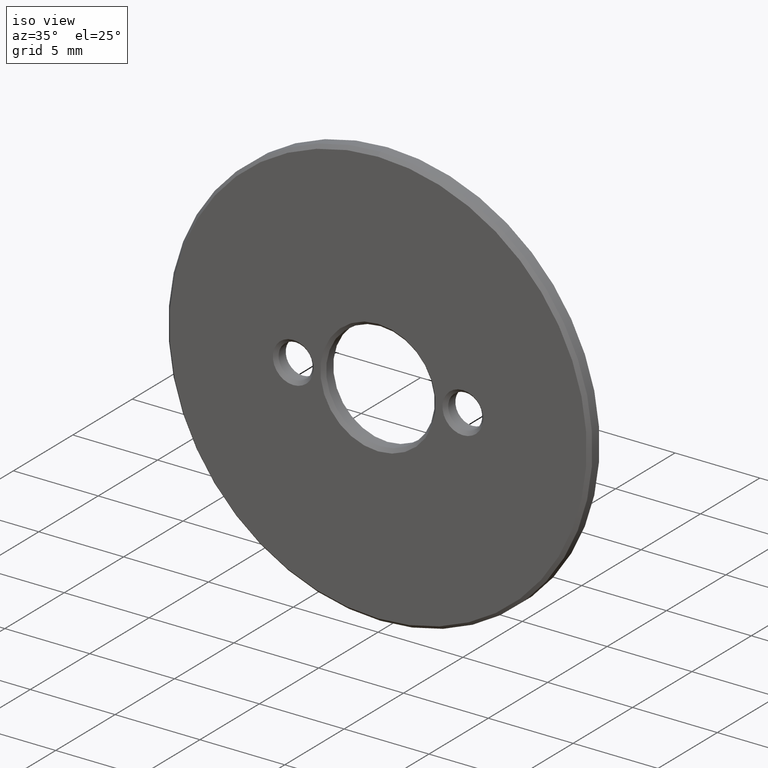
[diagram: clean part render]
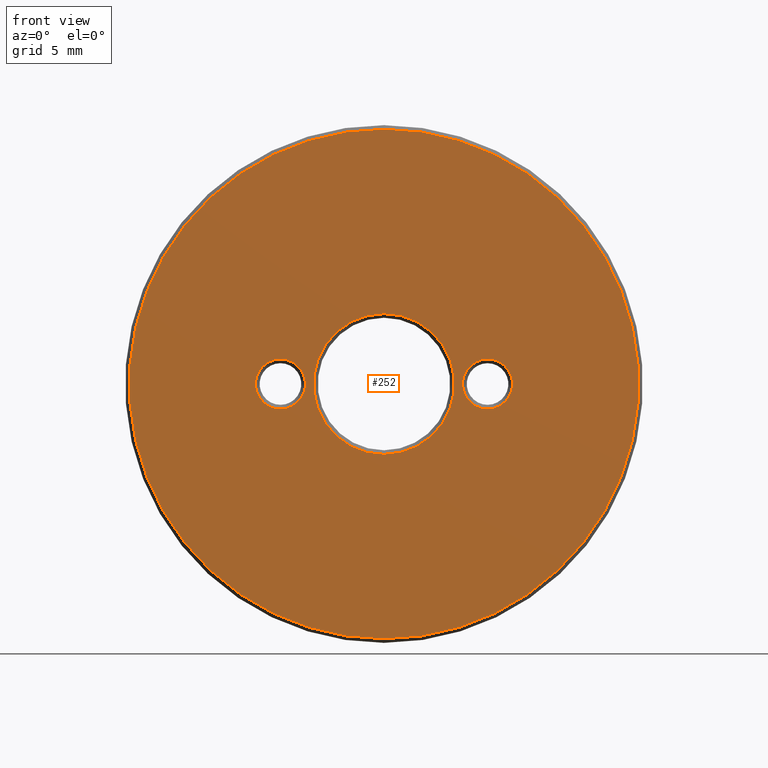
[diagram: tour spotlight — one face highlighted and labeled with its STEP entity id]
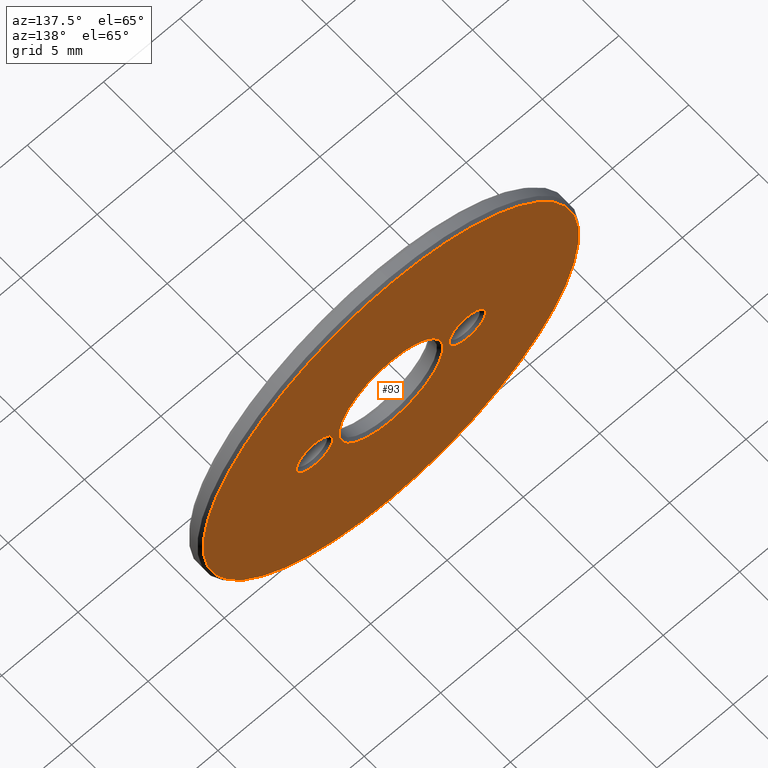
[diagram: tour spotlight — one face highlighted and labeled with its STEP entity id]
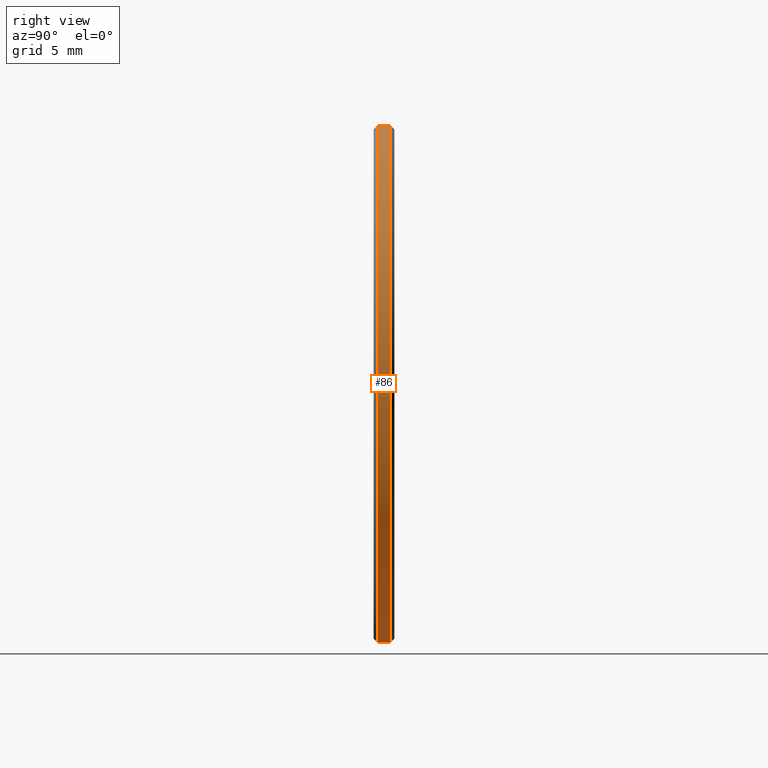
[diagram: tour spotlight — one face highlighted and labeled with its STEP entity id]
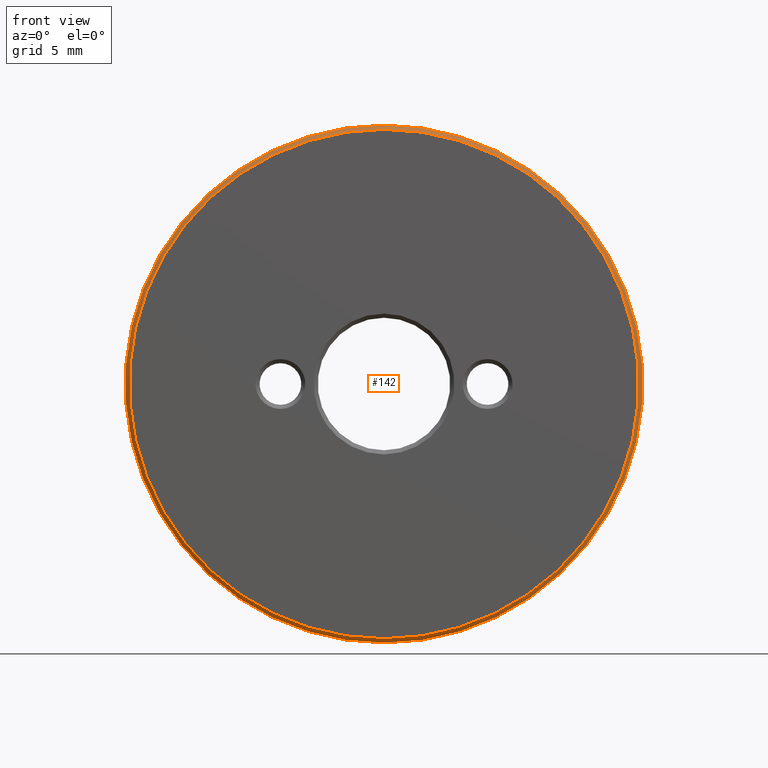
[diagram: tour spotlight — one face highlighted and labeled with its STEP entity id]
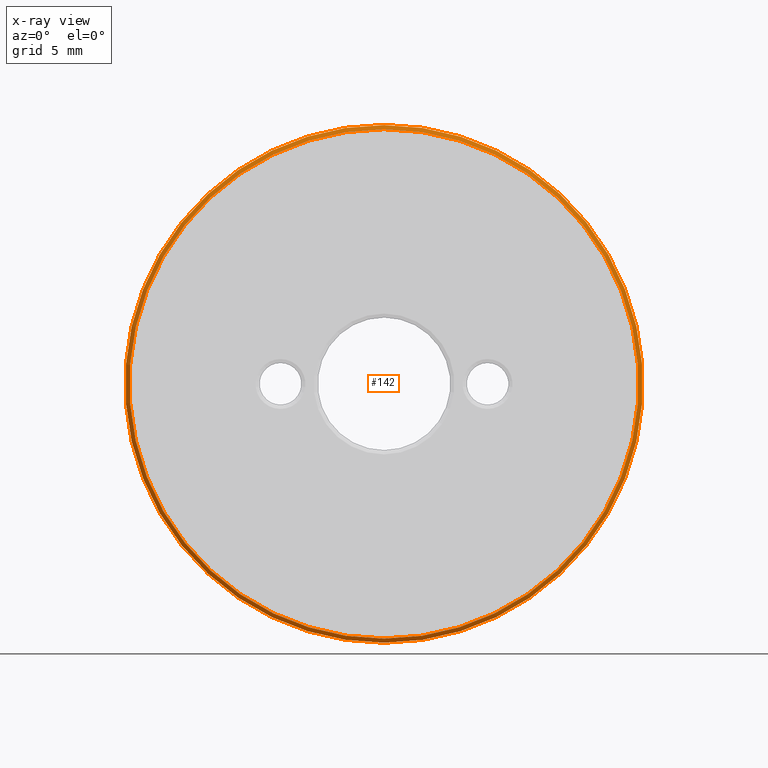
[diagram: x-ray of the same camera — body ghosted, this tour face saturated]
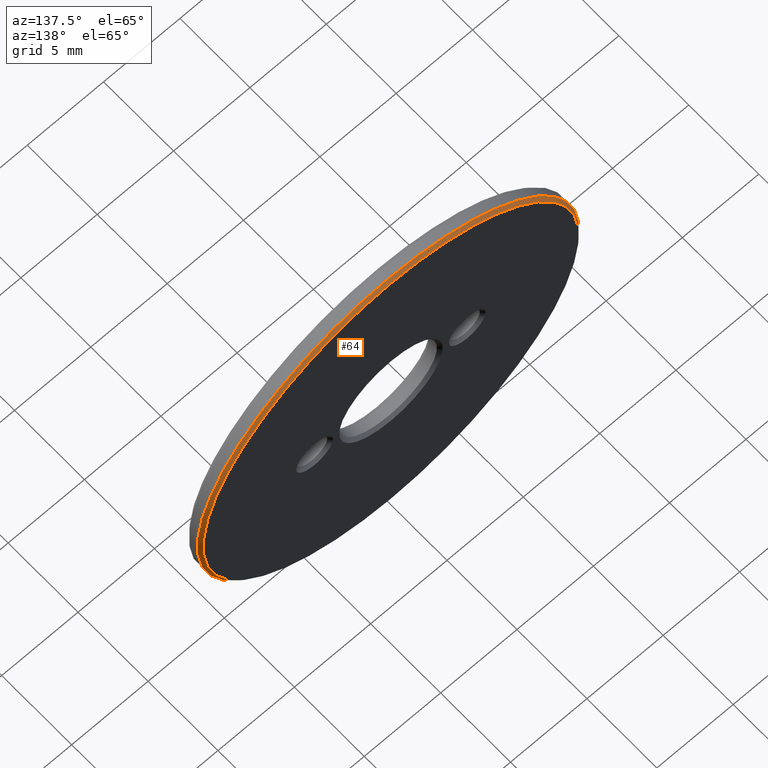
[diagram: tour spotlight — one face highlighted and labeled with its STEP entity id]
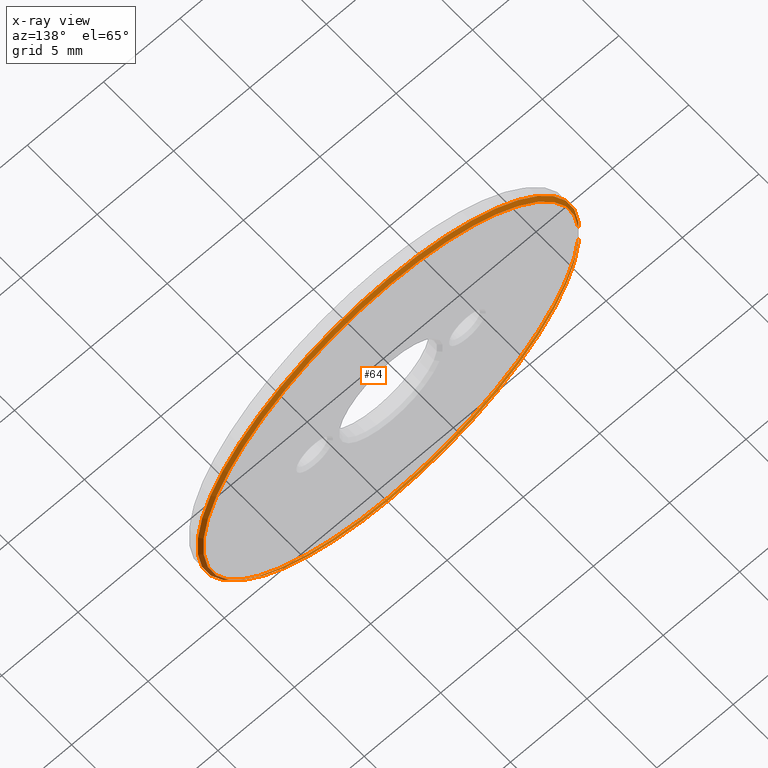
[diagram: x-ray of the same camera — body ghosted, this tour face saturated]
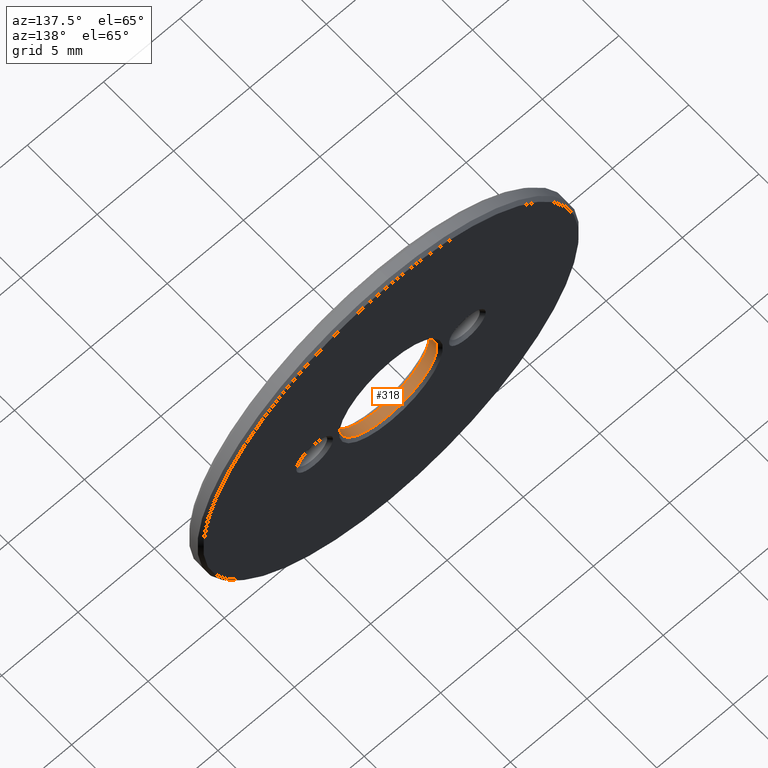
[diagram: tour spotlight — one face highlighted and labeled with its STEP entity id]
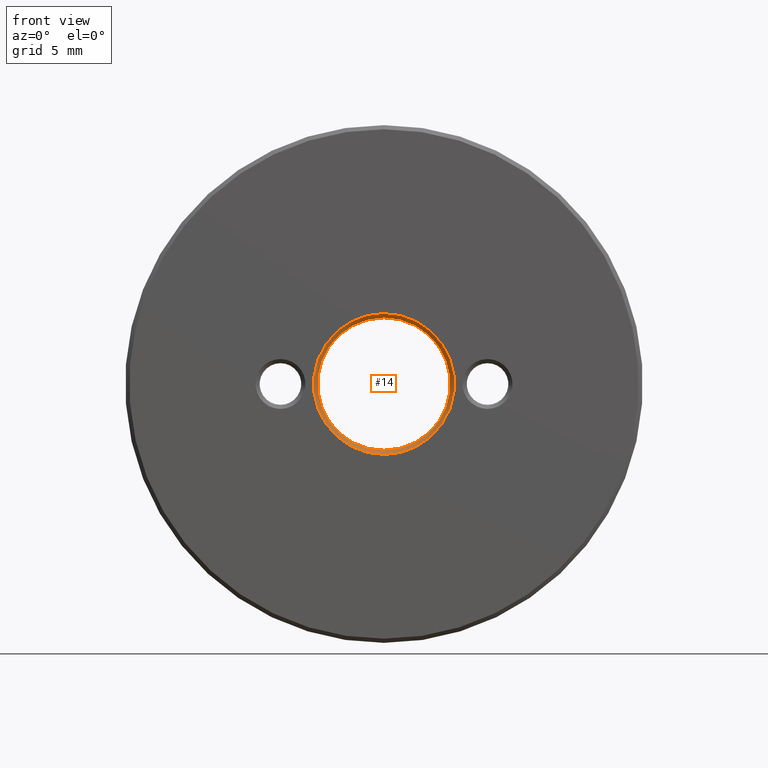
[diagram: tour spotlight — one face highlighted and labeled with its STEP entity id]
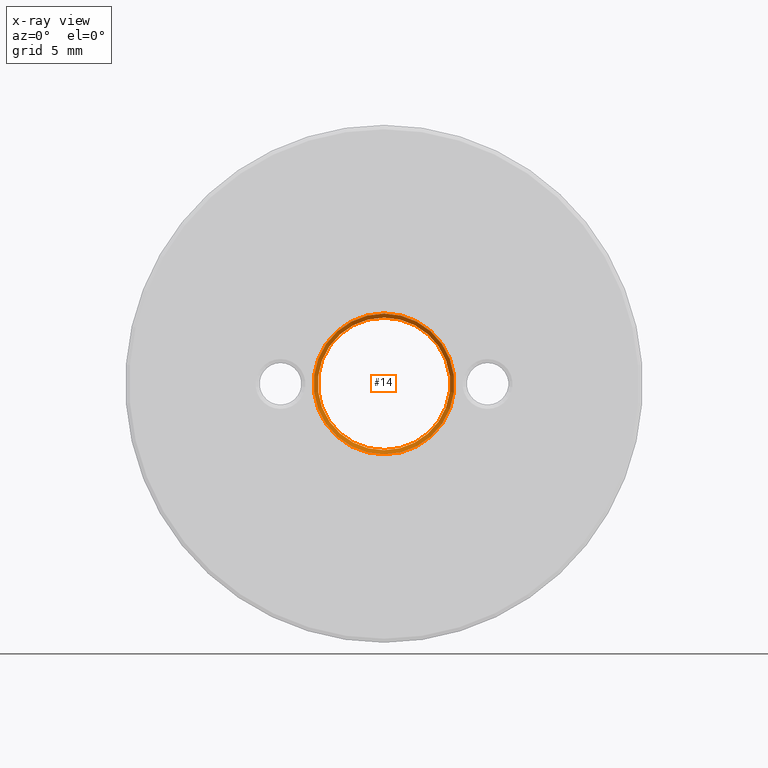
[diagram: x-ray of the same camera — body ghosted, this tour face saturated]
A machine part: a face-by-face anatomy tour. The part has 14 B-rep faces; the first image is the clean iso view, then the 7 largest visible faces are spotlighted one at a time (largest first), each with its STEP entity span.

Face 1 — front view, entity #252. In plain terms, the highlighted planar face has unit normal (0, 1, 0).
Definition (entity closure, byte-faithful):
#25 = VERTEX_POINT ( 'NONE', #118 ) ;
#33 = VERTEX_POINT ( 'NONE', #220 ) ;
#55 = FACE_BOUND ( 'NONE', #148, .T. ) ;
#66 = AXIS2_PLACEMENT_3D ( 'NONE', #170, #211, #260 ) ;
#84 = DIRECTION ( 'NONE',  ( 0.000000000000000000, 1.000000000000000000, 0.000000000000000000 ) ) ;
#87 = EDGE_LOOP ( 'NONE', ( #306 ) ) ;
#106 = CARTESIAN_POINT ( 'NONE',  ( -5.000000000000000000, 0.000000000000000000, 0.000000000000000000 ) ) ;
#108 = CIRCLE ( 'NONE', #341, 12.30000000000000249 ) ;
#109 = PLANE ( 'NONE',  #66 ) ;
#110 = FACE_OUTER_BOUND ( 'NONE', #87, .T. ) ;
#118 = CARTESIAN_POINT ( 'NONE',  ( 0.000000000000000000, 0.000000000000000000, 12.30000000000000249 ) ) ;
#125 = DIRECTION ( 'NONE',  ( 0.000000000000000000, 0.000000000000000000, 1.000000000000000000 ) ) ;
#127 = VERTEX_POINT ( 'NONE', #337 ) ;
#132 = EDGE_CURVE ( 'NONE', #183, #183, #276, .T. ) ;
#144 = EDGE_LOOP ( 'NONE', ( #363 ) ) ;
#148 = EDGE_LOOP ( 'NONE', ( #178 ) ) ;
#154 = CIRCLE ( 'NONE', #235, 1.205000000000001181 ) ;
#157 = CARTESIAN_POINT ( 'NONE',  ( 5.000000000000000000, 0.000000000000000000, -1.836970198721029194E-15 ) ) ;
#161 = DIRECTION ( 'NONE',  ( 0.000000000000000000, 1.000000000000000000, 0.000000000000000000 ) ) ;
#163 = EDGE_CURVE ( 'NONE', #33, #33, #154, .T. ) ;
#168 = EDGE_CURVE ( 'NONE', #127, #127, #289, .T. ) ;
#170 = CARTESIAN_POINT ( 'NONE',  ( 0.000000000000000000, 0.000000000000000000, 0.000000000000000000 ) ) ;
#178 = ORIENTED_EDGE ( 'NONE', *, *, #168, .T. ) ;
#183 = VERTEX_POINT ( 'NONE', #343 ) ;
#203 = CARTESIAN_POINT ( 'NONE',  ( 0.000000000000000000, 0.000000000000000000, 0.000000000000000000 ) ) ;
#206 = AXIS2_PLACEMENT_3D ( 'NONE', #106, #396, #315 ) ;
#211 = DIRECTION ( 'NONE',  ( 0.000000000000000000, 1.000000000000000000, 0.000000000000000000 ) ) ;
#215 = EDGE_LOOP ( 'NONE', ( #308 ) ) ;
#220 = CARTESIAN_POINT ( 'NONE',  ( 5.000000000000000000, 0.000000000000000000, 1.204999999999999405 ) ) ;
#234 = FACE_BOUND ( 'NONE', #144, .T. ) ;
#235 = AXIS2_PLACEMENT_3D ( 'NONE', #157, #161, #125 ) ;
#236 = FACE_BOUND ( 'NONE', #215, .T. ) ;
#248 = CARTESIAN_POINT ( 'NONE',  ( 0.000000000000000000, 0.000000000000000000, 0.000000000000000000 ) ) ;
#252 = ADVANCED_FACE ( 'NONE', ( #234, #236, #55, #110 ), #109, .F. ) ;
#260 = DIRECTION ( 'NONE',  ( 0.000000000000000000, -0.000000000000000000, 1.000000000000000000 ) ) ;
#276 = CIRCLE ( 'NONE', #206, 1.205000000000001181 ) ;
#289 = CIRCLE ( 'NONE', #342, 3.400000000000007017 ) ;
#306 = ORIENTED_EDGE ( 'NONE', *, *, #394, .T. ) ;
#308 = ORIENTED_EDGE ( 'NONE', *, *, #163, .T. ) ;
#315 = DIRECTION ( 'NONE',  ( 0.000000000000000000, 0.000000000000000000, 1.000000000000000000 ) ) ;
#337 = CARTESIAN_POINT ( 'NONE',  ( 0.000000000000000000, 0.000000000000000000, 3.400000000000007017 ) ) ;
#341 = AXIS2_PLACEMENT_3D ( 'NONE', #203, #383, #359 ) ;
#342 = AXIS2_PLACEMENT_3D ( 'NONE', #248, #84, #355 ) ;
#343 = CARTESIAN_POINT ( 'NONE',  ( -5.000000000000000000, 0.000000000000000000, 1.205000000000001181 ) ) ;
#355 = DIRECTION ( 'NONE',  ( 0.000000000000000000, 0.000000000000000000, 1.000000000000000000 ) ) ;
#359 = DIRECTION ( 'NONE',  ( 0.000000000000000000, 0.000000000000000000, 1.000000000000000000 ) ) ;
#363 = ORIENTED_EDGE ( 'NONE', *, *, #132, .T. ) ;
#383 = DIRECTION ( 'NONE',  ( -0.000000000000000000, -1.000000000000000000, -0.000000000000000000 ) ) ;
#394 = EDGE_CURVE ( 'NONE', #25, #25, #108, .T. ) ;
#396 = DIRECTION ( 'NONE',  ( 0.000000000000000000, 1.000000000000000000, 0.000000000000000000 ) ) ;

Face 2 — auxiliary view, entity #93. In plain terms, the highlighted planar face has unit normal (0, 1, 0).
Definition (entity closure, byte-faithful):
#8 = DIRECTION ( 'NONE',  ( 0.000000000000000000, -0.000000000000000000, 1.000000000000000000 ) ) ;
#13 = CARTESIAN_POINT ( 'NONE',  ( -5.000000000000000000, 1.000000000000000000, 0.000000000000000000 ) ) ;
#15 = VERTEX_POINT ( 'NONE', #382 ) ;
#21 = ORIENTED_EDGE ( 'NONE', *, *, #81, .T. ) ;
#31 = EDGE_LOOP ( 'NONE', ( #119 ) ) ;
#48 = FACE_OUTER_BOUND ( 'NONE', #62, .T. ) ;
#50 = DIRECTION ( 'NONE',  ( 0.000000000000000000, 0.000000000000000000, 1.000000000000000000 ) ) ;
#62 = EDGE_LOOP ( 'NONE', ( #92 ) ) ;
#69 = CARTESIAN_POINT ( 'NONE',  ( -5.000000000000000000, 1.000000000000000000, 1.205000000000004734 ) ) ;
#70 = DIRECTION ( 'NONE',  ( 0.000000000000000000, 1.000000000000000000, 0.000000000000000000 ) ) ;
#79 = FACE_BOUND ( 'NONE', #362, .T. ) ;
#81 = EDGE_CURVE ( 'NONE', #15, #15, #302, .T. ) ;
#92 = ORIENTED_EDGE ( 'NONE', *, *, #204, .T. ) ;
#93 = ADVANCED_FACE ( 'NONE', ( #79, #345, #48, #102 ), #229, .T. ) ;
#97 = VERTEX_POINT ( 'NONE', #307 ) ;
#98 = CIRCLE ( 'NONE', #227, 12.29999999999999893 ) ;
#100 = VERTEX_POINT ( 'NONE', #241 ) ;
#102 = FACE_BOUND ( 'NONE', #181, .T. ) ;
#107 = CARTESIAN_POINT ( 'NONE',  ( 0.000000000000000000, 1.000000000000000000, 0.000000000000000000 ) ) ;
#115 = ORIENTED_EDGE ( 'NONE', *, *, #381, .T. ) ;
#119 = ORIENTED_EDGE ( 'NONE', *, *, #255, .T. ) ;
#138 = CARTESIAN_POINT ( 'NONE',  ( 5.000000000000000000, 1.000000000000000000, -1.836970198721029194E-15 ) ) ;
#145 = DIRECTION ( 'NONE',  ( -0.000000000000000000, -1.000000000000000000, -0.000000000000000000 ) ) ;
#147 = DIRECTION ( 'NONE',  ( -0.000000000000000000, -1.000000000000000000, -0.000000000000000000 ) ) ;
#160 = AXIS2_PLACEMENT_3D ( 'NONE', #294, #145, #263 ) ;
#174 = CARTESIAN_POINT ( 'NONE',  ( 0.000000000000000000, 1.000000000000000000, 0.000000000000000000 ) ) ;
#181 = EDGE_LOOP ( 'NONE', ( #21 ) ) ;
#204 = EDGE_CURVE ( 'NONE', #97, #97, #98, .T. ) ;
#221 = AXIS2_PLACEMENT_3D ( 'NONE', #13, #147, #232 ) ;
#227 = AXIS2_PLACEMENT_3D ( 'NONE', #174, #300, #50 ) ;
#229 = PLANE ( 'NONE',  #284 ) ;
#230 = DIRECTION ( 'NONE',  ( 0.000000000000000000, 0.000000000000000000, 1.000000000000000000 ) ) ;
#231 = AXIS2_PLACEMENT_3D ( 'NONE', #138, #257, #230 ) ;
#232 = DIRECTION ( 'NONE',  ( 0.000000000000000000, 0.000000000000000000, 1.000000000000000000 ) ) ;
#241 = CARTESIAN_POINT ( 'NONE',  ( 0.000000000000000000, 1.000000000000000000, 3.399999999999999911 ) ) ;
#255 = EDGE_CURVE ( 'NONE', #100, #100, #384, .T. ) ;
#257 = DIRECTION ( 'NONE',  ( -0.000000000000000000, -1.000000000000000000, -0.000000000000000000 ) ) ;
#263 = DIRECTION ( 'NONE',  ( 0.000000000000000000, 0.000000000000000000, 1.000000000000000000 ) ) ;
#278 = VERTEX_POINT ( 'NONE', #69 ) ;
#284 = AXIS2_PLACEMENT_3D ( 'NONE', #107, #70, #8 ) ;
#294 = CARTESIAN_POINT ( 'NONE',  ( 0.000000000000000000, 1.000000000000000000, 0.000000000000000000 ) ) ;
#300 = DIRECTION ( 'NONE',  ( 0.000000000000000000, 1.000000000000000000, 0.000000000000000000 ) ) ;
#302 = CIRCLE ( 'NONE', #231, 1.204999999999994298 ) ;
#307 = CARTESIAN_POINT ( 'NONE',  ( 0.000000000000000000, 1.000000000000000000, 12.29999999999999893 ) ) ;
#345 = FACE_BOUND ( 'NONE', #31, .T. ) ;
#362 = EDGE_LOOP ( 'NONE', ( #115 ) ) ;
#381 = EDGE_CURVE ( 'NONE', #278, #278, #385, .T. ) ;
#382 = CARTESIAN_POINT ( 'NONE',  ( 5.000000000000000000, 1.000000000000000000, 1.204999999999992522 ) ) ;
#384 = CIRCLE ( 'NONE', #160, 3.399999999999999911 ) ;
#385 = CIRCLE ( 'NONE', #221, 1.205000000000004734 ) ;

Face 3 — right view, entity #86. In plain terms, the highlighted cylindrical surface (bore or boss wall) has radius 12.5 mm, axis along (-0, -1, -0).
Definition (entity closure, byte-faithful):
#28 = CARTESIAN_POINT ( 'NONE',  ( 0.000000000000000000, 0.8000000000000029310, 12.50000000000000000 ) ) ;
#30 = AXIS2_PLACEMENT_3D ( 'NONE', #261, #205, #176 ) ;
#36 = CYLINDRICAL_SURFACE ( 'NONE', #379, 12.50000000000000000 ) ;
#72 = DIRECTION ( 'NONE',  ( 0.000000000000000000, 0.000000000000000000, -1.000000000000000000 ) ) ;
#82 = DIRECTION ( 'NONE',  ( 0.000000000000000000, 0.000000000000000000, 1.000000000000000000 ) ) ;
#86 = ADVANCED_FACE ( 'NONE', ( #279, #224 ), #36, .T. ) ;
#123 = VERTEX_POINT ( 'NONE', #28 ) ;
#137 = CARTESIAN_POINT ( 'NONE',  ( 0.000000000000000000, 1.000000000000000000, 0.000000000000000000 ) ) ;
#143 = CARTESIAN_POINT ( 'NONE',  ( 0.000000000000000000, 0.8000000000000029310, 0.000000000000000000 ) ) ;
#176 = DIRECTION ( 'NONE',  ( 0.000000000000000000, 0.000000000000000000, 1.000000000000000000 ) ) ;
#197 = CIRCLE ( 'NONE', #350, 12.50000000000000000 ) ;
#205 = DIRECTION ( 'NONE',  ( -0.000000000000000000, 1.000000000000000000, -0.000000000000000000 ) ) ;
#224 = FACE_OUTER_BOUND ( 'NONE', #304, .T. ) ;
#261 = CARTESIAN_POINT ( 'NONE',  ( 0.000000000000000000, 0.1999999999999987899, 0.000000000000000000 ) ) ;
#275 = CIRCLE ( 'NONE', #30, 12.50000000000000000 ) ;
#279 = FACE_OUTER_BOUND ( 'NONE', #388, .T. ) ;
#304 = EDGE_LOOP ( 'NONE', ( #390 ) ) ;
#333 = ORIENTED_EDGE ( 'NONE', *, *, #364, .T. ) ;
#334 = VERTEX_POINT ( 'NONE', #391 ) ;
#348 = EDGE_CURVE ( 'NONE', #123, #123, #197, .T. ) ;
#350 = AXIS2_PLACEMENT_3D ( 'NONE', #143, #387, #82 ) ;
#352 = DIRECTION ( 'NONE',  ( -0.000000000000000000, -1.000000000000000000, -0.000000000000000000 ) ) ;
#364 = EDGE_CURVE ( 'NONE', #334, #334, #275, .T. ) ;
#379 = AXIS2_PLACEMENT_3D ( 'NONE', #137, #352, #72 ) ;
#387 = DIRECTION ( 'NONE',  ( 0.000000000000000000, -1.000000000000000000, 0.000000000000000000 ) ) ;
#388 = EDGE_LOOP ( 'NONE', ( #333 ) ) ;
#390 = ORIENTED_EDGE ( 'NONE', *, *, #348, .T. ) ;
#391 = CARTESIAN_POINT ( 'NONE',  ( 0.000000000000000000, 0.1999999999999987899, 12.50000000000000000 ) ) ;

Face 4 — front view, entity #142. An x-ray twin of the same camera follows (body ghosted, this face saturated) — the face is partly hidden behind the body. In plain terms, the highlighted conical surface has half-angle 45 deg.
Definition (entity closure, byte-faithful):
#25 = VERTEX_POINT ( 'NONE', #118 ) ;
#30 = AXIS2_PLACEMENT_3D ( 'NONE', #261, #205, #176 ) ;
#32 = AXIS2_PLACEMENT_3D ( 'NONE', #38, #199, #311 ) ;
#38 = CARTESIAN_POINT ( 'NONE',  ( 0.000000000000000000, 0.1999999999999987899, 0.000000000000000000 ) ) ;
#68 = CONICAL_SURFACE ( 'NONE', #32, 12.50000000000000000, 0.7853981633974482790 ) ;
#108 = CIRCLE ( 'NONE', #341, 12.30000000000000249 ) ;
#118 = CARTESIAN_POINT ( 'NONE',  ( 0.000000000000000000, 0.000000000000000000, 12.30000000000000249 ) ) ;
#130 = FACE_OUTER_BOUND ( 'NONE', #331, .T. ) ;
#142 = ADVANCED_FACE ( 'NONE', ( #282, #130 ), #68, .T. ) ;
#176 = DIRECTION ( 'NONE',  ( 0.000000000000000000, 0.000000000000000000, 1.000000000000000000 ) ) ;
#199 = DIRECTION ( 'NONE',  ( -0.000000000000000000, 1.000000000000000000, -0.000000000000000000 ) ) ;
#203 = CARTESIAN_POINT ( 'NONE',  ( 0.000000000000000000, 0.000000000000000000, 0.000000000000000000 ) ) ;
#205 = DIRECTION ( 'NONE',  ( -0.000000000000000000, 1.000000000000000000, -0.000000000000000000 ) ) ;
#261 = CARTESIAN_POINT ( 'NONE',  ( 0.000000000000000000, 0.1999999999999987899, 0.000000000000000000 ) ) ;
#275 = CIRCLE ( 'NONE', #30, 12.50000000000000000 ) ;
#282 = FACE_BOUND ( 'NONE', #338, .T. ) ;
#311 = DIRECTION ( 'NONE',  ( 0.000000000000000000, 0.000000000000000000, 1.000000000000000000 ) ) ;
#331 = EDGE_LOOP ( 'NONE', ( #365 ) ) ;
#334 = VERTEX_POINT ( 'NONE', #391 ) ;
#338 = EDGE_LOOP ( 'NONE', ( #360 ) ) ;
#341 = AXIS2_PLACEMENT_3D ( 'NONE', #203, #383, #359 ) ;
#359 = DIRECTION ( 'NONE',  ( 0.000000000000000000, 0.000000000000000000, 1.000000000000000000 ) ) ;
#360 = ORIENTED_EDGE ( 'NONE', *, *, #394, .F. ) ;
#364 = EDGE_CURVE ( 'NONE', #334, #334, #275, .T. ) ;
#365 = ORIENTED_EDGE ( 'NONE', *, *, #364, .F. ) ;
#383 = DIRECTION ( 'NONE',  ( -0.000000000000000000, -1.000000000000000000, -0.000000000000000000 ) ) ;
#391 = CARTESIAN_POINT ( 'NONE',  ( 0.000000000000000000, 0.1999999999999987899, 12.50000000000000000 ) ) ;
#394 = EDGE_CURVE ( 'NONE', #25, #25, #108, .T. ) ;

Face 5 — auxiliary view, entity #64. An x-ray twin of the same camera follows (body ghosted, this face saturated) — the face is partly hidden behind the body. In plain terms, the highlighted conical surface has half-angle 45 deg.
Definition (entity closure, byte-faithful):
#19 = EDGE_LOOP ( 'NONE', ( #155 ) ) ;
#28 = CARTESIAN_POINT ( 'NONE',  ( 0.000000000000000000, 0.8000000000000029310, 12.50000000000000000 ) ) ;
#49 = CARTESIAN_POINT ( 'NONE',  ( 0.000000000000000000, 1.000000000000000000, 0.000000000000000000 ) ) ;
#50 = DIRECTION ( 'NONE',  ( 0.000000000000000000, 0.000000000000000000, 1.000000000000000000 ) ) ;
#64 = ADVANCED_FACE ( 'NONE', ( #397, #202 ), #369, .T. ) ;
#78 = AXIS2_PLACEMENT_3D ( 'NONE', #49, #222, #258 ) ;
#82 = DIRECTION ( 'NONE',  ( 0.000000000000000000, 0.000000000000000000, 1.000000000000000000 ) ) ;
#97 = VERTEX_POINT ( 'NONE', #307 ) ;
#98 = CIRCLE ( 'NONE', #227, 12.29999999999999893 ) ;
#123 = VERTEX_POINT ( 'NONE', #28 ) ;
#143 = CARTESIAN_POINT ( 'NONE',  ( 0.000000000000000000, 0.8000000000000029310, 0.000000000000000000 ) ) ;
#151 = EDGE_LOOP ( 'NONE', ( #320 ) ) ;
#155 = ORIENTED_EDGE ( 'NONE', *, *, #348, .F. ) ;
#174 = CARTESIAN_POINT ( 'NONE',  ( 0.000000000000000000, 1.000000000000000000, 0.000000000000000000 ) ) ;
#197 = CIRCLE ( 'NONE', #350, 12.50000000000000000 ) ;
#202 = FACE_BOUND ( 'NONE', #151, .T. ) ;
#204 = EDGE_CURVE ( 'NONE', #97, #97, #98, .T. ) ;
#222 = DIRECTION ( 'NONE',  ( 0.000000000000000000, -1.000000000000000000, 0.000000000000000000 ) ) ;
#227 = AXIS2_PLACEMENT_3D ( 'NONE', #174, #300, #50 ) ;
#258 = DIRECTION ( 'NONE',  ( 0.000000000000000000, 0.000000000000000000, -1.000000000000000000 ) ) ;
#300 = DIRECTION ( 'NONE',  ( 0.000000000000000000, 1.000000000000000000, 0.000000000000000000 ) ) ;
#307 = CARTESIAN_POINT ( 'NONE',  ( 0.000000000000000000, 1.000000000000000000, 12.29999999999999893 ) ) ;
#320 = ORIENTED_EDGE ( 'NONE', *, *, #204, .F. ) ;
#348 = EDGE_CURVE ( 'NONE', #123, #123, #197, .T. ) ;
#350 = AXIS2_PLACEMENT_3D ( 'NONE', #143, #387, #82 ) ;
#369 = CONICAL_SURFACE ( 'NONE', #78, 12.29999999999999893, 0.7853981633974612686 ) ;
#387 = DIRECTION ( 'NONE',  ( 0.000000000000000000, -1.000000000000000000, 0.000000000000000000 ) ) ;
#397 = FACE_OUTER_BOUND ( 'NONE', #19, .T. ) ;

Face 6 — auxiliary view, entity #318. In plain terms, the highlighted cylindrical surface (bore or boss wall) has radius 3.2 mm, axis along (-0, -1, -0).
Definition (entity closure, byte-faithful):
#3 = EDGE_CURVE ( 'NONE', #172, #172, #47, .T. ) ;
#23 = DIRECTION ( 'NONE',  ( -0.000000000000000000, -1.000000000000000000, -0.000000000000000000 ) ) ;
#47 = CIRCLE ( 'NONE', #171, 3.200000000000000178 ) ;
#59 = CARTESIAN_POINT ( 'NONE',  ( 0.000000000000000000, 0.2000000000000070333, 3.200000000000000178 ) ) ;
#80 = CYLINDRICAL_SURFACE ( 'NONE', #309, 3.200000000000000178 ) ;
#85 = CARTESIAN_POINT ( 'NONE',  ( 0.000000000000000000, 1.000000000000000000, 0.000000000000000000 ) ) ;
#94 = EDGE_LOOP ( 'NONE', ( #329 ) ) ;
#171 = AXIS2_PLACEMENT_3D ( 'NONE', #184, #246, #366 ) ;
#172 = VERTEX_POINT ( 'NONE', #59 ) ;
#184 = CARTESIAN_POINT ( 'NONE',  ( 0.000000000000000000, 0.2000000000000070333, 0.000000000000000000 ) ) ;
#188 = CIRCLE ( 'NONE', #200, 3.200000000000000178 ) ;
#189 = VERTEX_POINT ( 'NONE', #269 ) ;
#200 = AXIS2_PLACEMENT_3D ( 'NONE', #325, #380, #207 ) ;
#207 = DIRECTION ( 'NONE',  ( 0.000000000000000000, 0.000000000000000000, 1.000000000000000000 ) ) ;
#245 = EDGE_CURVE ( 'NONE', #189, #189, #188, .T. ) ;
#246 = DIRECTION ( 'NONE',  ( -0.000000000000000000, -1.000000000000000000, -0.000000000000000000 ) ) ;
#269 = CARTESIAN_POINT ( 'NONE',  ( 0.000000000000000000, 0.8000000000000003775, 3.200000000000000178 ) ) ;
#309 = AXIS2_PLACEMENT_3D ( 'NONE', #85, #23, #332 ) ;
#318 = ADVANCED_FACE ( 'NONE', ( #361, #327 ), #80, .F. ) ;
#325 = CARTESIAN_POINT ( 'NONE',  ( 0.000000000000000000, 0.8000000000000003775, 0.000000000000000000 ) ) ;
#327 = FACE_OUTER_BOUND ( 'NONE', #335, .T. ) ;
#329 = ORIENTED_EDGE ( 'NONE', *, *, #3, .T. ) ;
#332 = DIRECTION ( 'NONE',  ( 0.000000000000000000, 0.000000000000000000, -1.000000000000000000 ) ) ;
#335 = EDGE_LOOP ( 'NONE', ( #393 ) ) ;
#361 = FACE_OUTER_BOUND ( 'NONE', #94, .T. ) ;
#366 = DIRECTION ( 'NONE',  ( 0.000000000000000000, 0.000000000000000000, 1.000000000000000000 ) ) ;
#380 = DIRECTION ( 'NONE',  ( 0.000000000000000000, 1.000000000000000000, 0.000000000000000000 ) ) ;
#393 = ORIENTED_EDGE ( 'NONE', *, *, #245, .T. ) ;

Face 7 — front view, entity #14. An x-ray twin of the same camera follows (body ghosted, this face saturated) — the face is partly hidden behind the body. In plain terms, the highlighted conical surface has half-angle 45 deg.
Definition (entity closure, byte-faithful):
#3 = EDGE_CURVE ( 'NONE', #172, #172, #47, .T. ) ;
#14 = ADVANCED_FACE ( 'NONE', ( #297, #77 ), #250, .F. ) ;
#47 = CIRCLE ( 'NONE', #171, 3.200000000000000178 ) ;
#57 = ORIENTED_EDGE ( 'NONE', *, *, #3, .F. ) ;
#59 = CARTESIAN_POINT ( 'NONE',  ( 0.000000000000000000, 0.2000000000000070333, 3.200000000000000178 ) ) ;
#77 = FACE_OUTER_BOUND ( 'NONE', #214, .T. ) ;
#84 = DIRECTION ( 'NONE',  ( 0.000000000000000000, 1.000000000000000000, 0.000000000000000000 ) ) ;
#127 = VERTEX_POINT ( 'NONE', #337 ) ;
#168 = EDGE_CURVE ( 'NONE', #127, #127, #289, .T. ) ;
#171 = AXIS2_PLACEMENT_3D ( 'NONE', #184, #246, #366 ) ;
#172 = VERTEX_POINT ( 'NONE', #59 ) ;
#184 = CARTESIAN_POINT ( 'NONE',  ( 0.000000000000000000, 0.2000000000000070333, 0.000000000000000000 ) ) ;
#212 = EDGE_LOOP ( 'NONE', ( #57 ) ) ;
#214 = EDGE_LOOP ( 'NONE', ( #265 ) ) ;
#246 = DIRECTION ( 'NONE',  ( -0.000000000000000000, -1.000000000000000000, -0.000000000000000000 ) ) ;
#248 = CARTESIAN_POINT ( 'NONE',  ( 0.000000000000000000, 0.000000000000000000, 0.000000000000000000 ) ) ;
#250 = CONICAL_SURFACE ( 'NONE', #349, 3.400000000000007017, 0.7853981633974482790 ) ;
#265 = ORIENTED_EDGE ( 'NONE', *, *, #168, .F. ) ;
#289 = CIRCLE ( 'NONE', #342, 3.400000000000007017 ) ;
#297 = FACE_BOUND ( 'NONE', #212, .T. ) ;
#322 = DIRECTION ( 'NONE',  ( -0.000000000000000000, -1.000000000000000000, -0.000000000000000000 ) ) ;
#337 = CARTESIAN_POINT ( 'NONE',  ( 0.000000000000000000, 0.000000000000000000, 3.400000000000007017 ) ) ;
#342 = AXIS2_PLACEMENT_3D ( 'NONE', #248, #84, #355 ) ;
#349 = AXIS2_PLACEMENT_3D ( 'NONE', #374, #322, #370 ) ;
#355 = DIRECTION ( 'NONE',  ( 0.000000000000000000, 0.000000000000000000, 1.000000000000000000 ) ) ;
#366 = DIRECTION ( 'NONE',  ( 0.000000000000000000, 0.000000000000000000, 1.000000000000000000 ) ) ;
#370 = DIRECTION ( 'NONE',  ( 0.000000000000000000, 0.000000000000000000, -1.000000000000000000 ) ) ;
#374 = CARTESIAN_POINT ( 'NONE',  ( 0.000000000000000000, 0.000000000000000000, 0.000000000000000000 ) ) ;